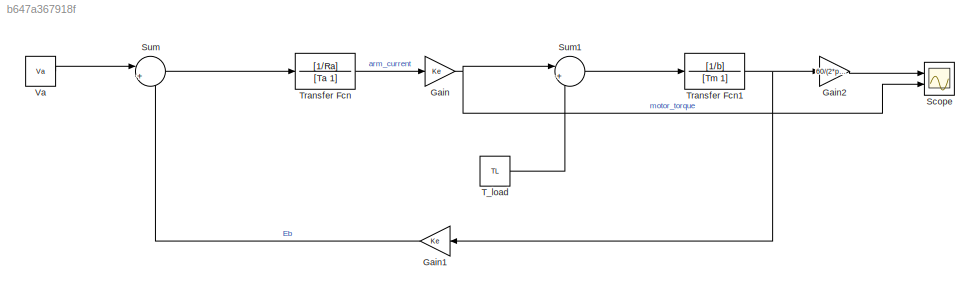
MODEL slx_b647a367918f
KIND model
CONFIG AbsTol = auto
CONFIG EnableMultiTasking = off
CONFIG FixedStep = auto
CONFIG MaxStep = 0.2
CONFIG MinStep = auto
CONFIG RelTol = 1e-3
CONFIG SampleTimeConstraint = Unconstrained
CONFIG SolverName = VariableStepAuto
CONFIG StartTime = 0.0
CONFIG StopTime = 10.0
BLOCK [Gain] Gain
  Gain = Ke
BLOCK [Gain] Gain1
  Gain = Ke
  NameLocation = top
BLOCK [Gain] Gain2
  Gain = 60/(2*pi)
BLOCK [Scope] Scope
  Floating = off
  NumInputPorts = 2
  Ports = [2]
  ScopeSpecificationString = Simulink.scopes.TimeScopeBlockCfg('CurrentConfiguration', extmgr.ConfigurationSet(extmgr.Configuration('Core','General UI',true),extmgr.Configuration('Core','Source UI',true),extmgr.Configuration('Sources','WiredSimulink',true),extmgr.Configuration('Visuals','Time Domain',true,'SerializedDisplays',{struct('MinYLimReal','-114.62492','MaxYLimReal','1030.334','YLabelReal','','MinYLimMag',' 0.00000','...<+1984ch>
BLOCK [Sum] Sum
  Inputs = |+-
  Ports = [2, 1]
BLOCK [Sum] Sum1
  Inputs = |+-
  Ports = [2, 1]
BLOCK [Constant] T_load
  Value = TL
BLOCK [TransferFcn] Transfer Fcn
  Denominator = [Ta 1]
  Numerator = [1/Ra]
BLOCK [TransferFcn] Transfer Fcn1
  Denominator = [Tm 1]
  Numerator = [1/b]
BLOCK [Constant] Va
  Value = Va
LINE Gain1:1 -> Sum:2
LINE Gain2:1 -> Scope:1
NET Gain:1 -> Scope:2, Sum1:1
LINE Sum1:1 -> Transfer Fcn1:1
LINE Sum:1 -> Transfer Fcn:1
LINE T_load:1 -> Sum1:2
NET Transfer Fcn1:1 -> Gain1:1, Gain2:1
LINE Transfer Fcn:1 -> Gain:1
LINE Va:1 -> Sum:1
note: NET lines group one-source signal fan-out (src -> all destinations, sorted); 1:1 wires keep LINE
